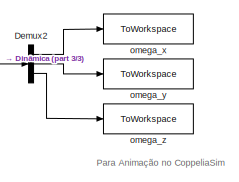
[diagram: root canvas - part 1/3, top right region]
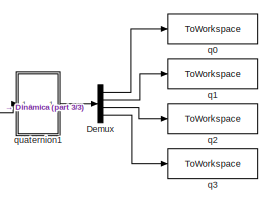
[diagram: root canvas - part 2/3, top right region]
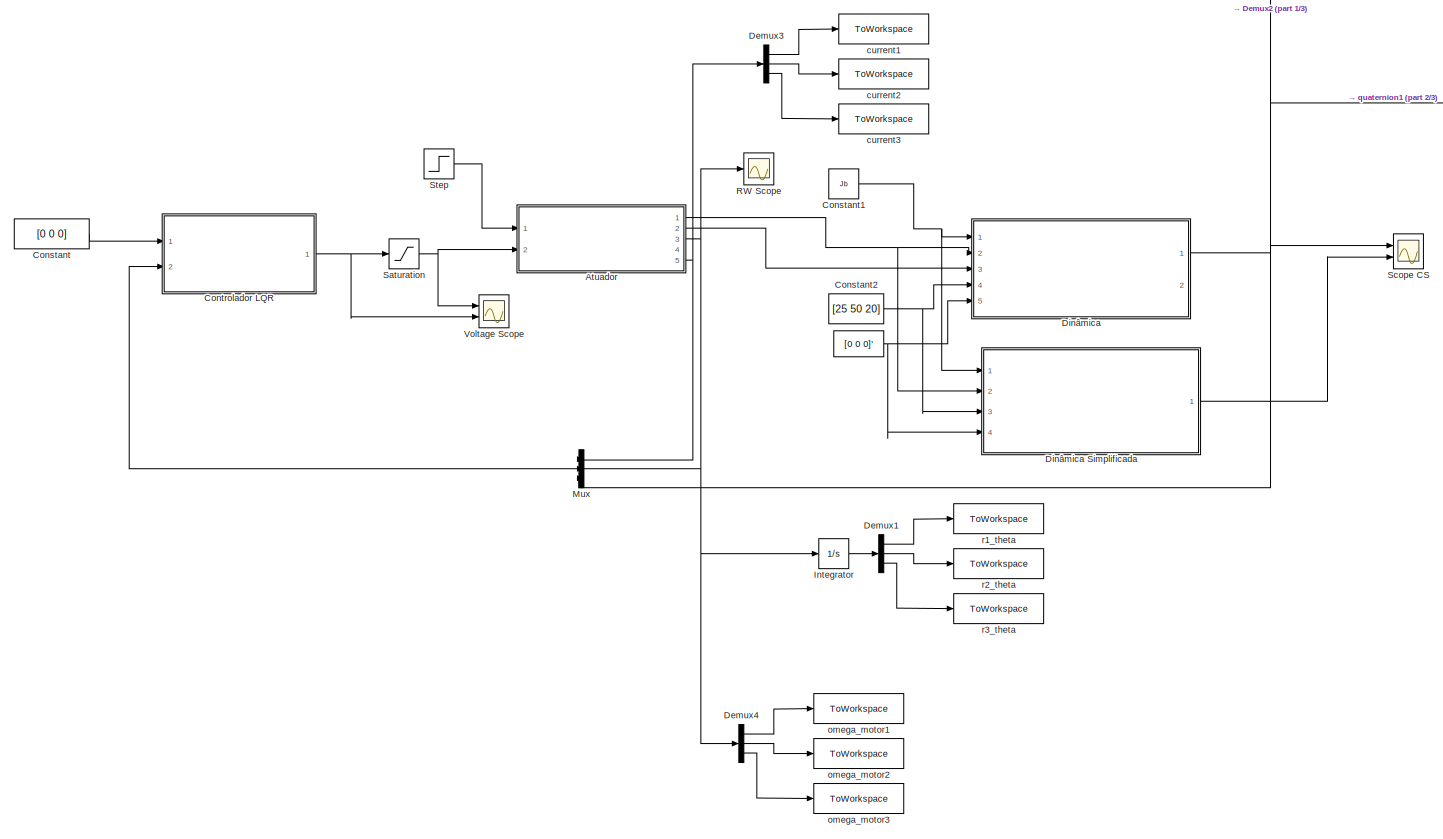
[diagram: root canvas - part 3/3, most of the canvas]
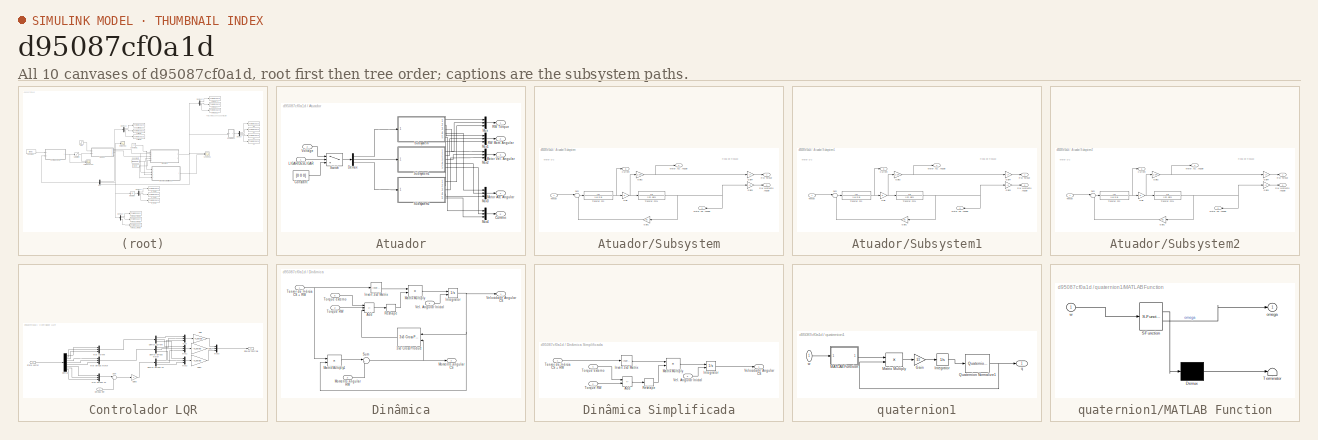
[diagram: thumbnail index - all 10 canvases of the model, root first then tree order]
MODEL slx_d95087cf0a1d
KIND model
CONFIG AbsTol = auto
CONFIG EnableMultiTasking = off
CONFIG FixedStep = auto
CONFIG MaxStep = 0.4
CONFIG MinStep = auto
CONFIG RelTol = 1e-3
CONFIG SampleTimeConstraint = Unconstrained
CONFIG SolverName = ode45
CONFIG StartTime = 0.0
CONFIG StopTime = 100
BLOCK [Constant]  
  Value = [0 0 0]'
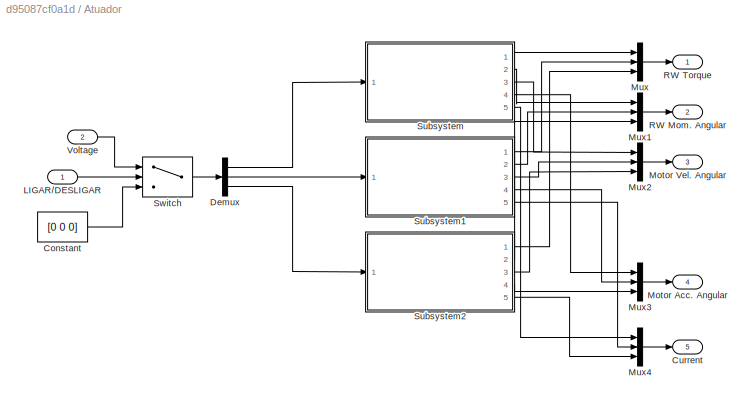
BLOCK [SubSystem] Atuador
  Ports = [2, 5]
  RequestExecContextInheritance = off
BLOCK [Constant] Atuador/Constant
  Value = [0 0 0]
BLOCK [Outport] Atuador/Current
  Port = 5
BLOCK [Demux] Atuador/Demux
  Outputs = 3
  Ports = [1, 3]
BLOCK [Inport] Atuador/LIGAR//DESLIGAR
BLOCK [Outport] Atuador/Motor Acc. Angular
  Port = 4
BLOCK [Outport] Atuador/Motor Vel. Angular
  Port = 3
BLOCK [Mux] Atuador/Mux
  DisplayOption = bar
  Inputs = 3
  Ports = [3, 1]
BLOCK [Mux] Atuador/Mux1
  DisplayOption = bar
  Inputs = 3
  Ports = [3, 1]
BLOCK [Mux] Atuador/Mux2
  DisplayOption = bar
  Inputs = 3
  Ports = [3, 1]
BLOCK [Mux] Atuador/Mux3
  DisplayOption = bar
  Inputs = 3
  Ports = [3, 1]
BLOCK [Mux] Atuador/Mux4
  DisplayOption = bar
  Inputs = 3
  Ports = [3, 1]
BLOCK [Outport] Atuador/RW Mom. Angular
  Port = 2
BLOCK [Outport] Atuador/RW Torque
BLOCK [SubSystem] Atuador/Subsystem
  Ports = [1, 5]
  RequestExecContextInheritance = off
BLOCK [Outport] Atuador/Subsystem/Current
  Port = 5
BLOCK [Gain] Atuador/Subsystem/Gain
  Gain = Ki
BLOCK [Gain] Atuador/Subsystem/Gain1
  Gain = Kb
BLOCK [Gain] Atuador/Subsystem/Gain2
  Gain = 1/Jm
BLOCK [Gain] Atuador/Subsystem/Gain3
  Gain = -Jr
BLOCK [Gain] Atuador/Subsystem/Gain4
  Gain = -Jr
BLOCK [Outport] Atuador/Subsystem/Motor Acc. Angular
  Port = 4
BLOCK [Outport] Atuador/Subsystem/Motor Vel. Angular
  Port = 3
BLOCK [Outport] Atuador/Subsystem/RW Momento Angular
  Port = 2
BLOCK [Outport] Atuador/Subsystem/RW Torque
BLOCK [Sum] Atuador/Subsystem/Sum
  Inputs = |+-
  Ports = [2, 1]
BLOCK [Inport] Atuador/Subsystem/Tensão
BLOCK [TransferFcn] Atuador/Subsystem/Transfer Fcn
  Denominator = [La Ra]
BLOCK [TransferFcn] Atuador/Subsystem/Transfer Fcn1
  Denominator = [Jm Bm]
BLOCK [SubSystem] Atuador/Subsystem1
  Ports = [1, 5]
  RequestExecContextInheritance = off
BLOCK [Outport] Atuador/Subsystem1/Current
  Port = 5
BLOCK [Gain] Atuador/Subsystem1/Gain
  Gain = Ki
BLOCK [Gain] Atuador/Subsystem1/Gain1
  Gain = Kb
BLOCK [Gain] Atuador/Subsystem1/Gain2
  Gain = 1/Jm
BLOCK [Gain] Atuador/Subsystem1/Gain3
  Gain = -Jr
BLOCK [Gain] Atuador/Subsystem1/Gain4
  Gain = -Jr
BLOCK [Outport] Atuador/Subsystem1/Motor Acc. Angular
  Port = 4
BLOCK [Outport] Atuador/Subsystem1/Motor Vel. Angular
  Port = 3
BLOCK [Outport] Atuador/Subsystem1/RW Momento Angular
  Port = 2
BLOCK [Outport] Atuador/Subsystem1/RW Torque
BLOCK [Sum] Atuador/Subsystem1/Sum
  Inputs = |+-
  Ports = [2, 1]
BLOCK [Inport] Atuador/Subsystem1/Tensão
BLOCK [TransferFcn] Atuador/Subsystem1/Transfer Fcn
  Denominator = [La Ra]
BLOCK [TransferFcn] Atuador/Subsystem1/Transfer Fcn1
  Denominator = [Jm Bm]
BLOCK [SubSystem] Atuador/Subsystem2
  Ports = [1, 5]
  RequestExecContextInheritance = off
BLOCK [Outport] Atuador/Subsystem2/Current
  Port = 5
BLOCK [Gain] Atuador/Subsystem2/Gain
  Gain = Ki
BLOCK [Gain] Atuador/Subsystem2/Gain1
  Gain = Kb
BLOCK [Gain] Atuador/Subsystem2/Gain2
  Gain = 1/Jm
BLOCK [Gain] Atuador/Subsystem2/Gain3
  Gain = -Jr
BLOCK [Gain] Atuador/Subsystem2/Gain4
  Gain = -Jr
BLOCK [Outport] Atuador/Subsystem2/Motor Acc. Angular
  Port = 4
BLOCK [Outport] Atuador/Subsystem2/Motor Vel. Angular
  Port = 3
BLOCK [Outport] Atuador/Subsystem2/RW Momento Angular
  Port = 2
BLOCK [Outport] Atuador/Subsystem2/RW Torque
BLOCK [Sum] Atuador/Subsystem2/Sum
  Inputs = |+-
  Ports = [2, 1]
BLOCK [Inport] Atuador/Subsystem2/Tensão
BLOCK [TransferFcn] Atuador/Subsystem2/Transfer Fcn
  Denominator = [La Ra]
BLOCK [TransferFcn] Atuador/Subsystem2/Transfer Fcn1
  Denominator = [Jm Bm]
BLOCK [Switch] Atuador/Switch
  Criteria = u2 > Threshold
  InputSameDT = off
  SaturateOnIntegerOverflow = off
BLOCK [Inport] Atuador/Voltage
  Port = 2
BLOCK [Constant] Constant
  Value = [0 0 0]
BLOCK [Constant] Constant1
  Value = Jb
BLOCK [Constant] Constant2
  Value = [25 50 20]
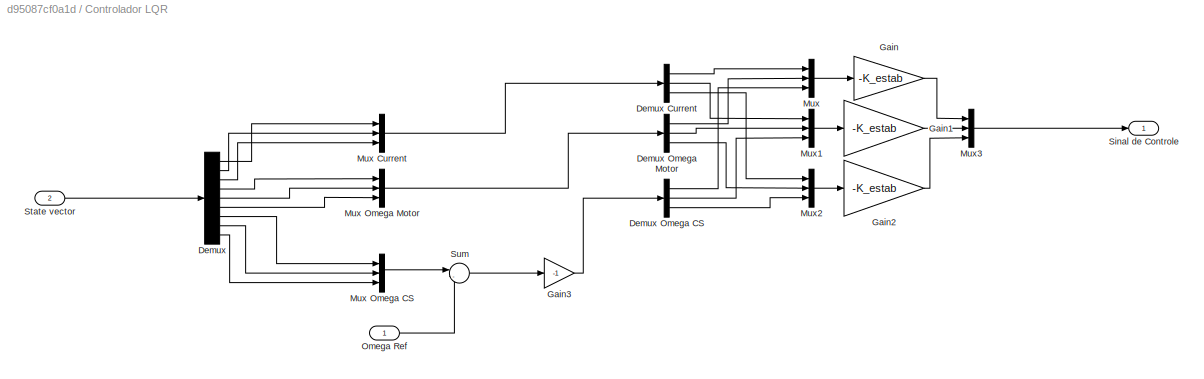
BLOCK [SubSystem] Controlador LQR
  Ports = [2, 1]
  RequestExecContextInheritance = off
BLOCK [Demux] Controlador LQR/Demux
  Outputs = 9
  Ports = [1, 9]
BLOCK [Demux] Controlador LQR/Demux Current
  Outputs = 3
  Ports = [1, 3]
BLOCK [Demux] Controlador LQR/Demux Omega CS
  Outputs = 3
  Ports = [1, 3]
BLOCK [Demux] Controlador LQR/Demux Omega Motor
  Outputs = 3
  Ports = [1, 3]
BLOCK [Gain] Controlador LQR/Gain
  Gain = -K_estab
  Multiplication = Matrix(K*u)
BLOCK [Gain] Controlador LQR/Gain1
  Gain = -K_estab
  Multiplication = Matrix(K*u)
BLOCK [Gain] Controlador LQR/Gain2
  Gain = -K_estab
  Multiplication = Matrix(K*u)
BLOCK [Gain] Controlador LQR/Gain3
  Gain = -1
BLOCK [Mux] Controlador LQR/Mux
  DisplayOption = bar
  Inputs = 3
  Ports = [3, 1]
BLOCK [Mux] Controlador LQR/Mux Current
  DisplayOption = bar
  Inputs = 3
  Ports = [3, 1]
BLOCK [Mux] Controlador LQR/Mux Omega CS
  DisplayOption = bar
  Inputs = 3
  Ports = [3, 1]
BLOCK [Mux] Controlador LQR/Mux Omega Motor
  DisplayOption = bar
  Inputs = 3
  Ports = [3, 1]
BLOCK [Mux] Controlador LQR/Mux1
  DisplayOption = bar
  Inputs = 3
  Ports = [3, 1]
BLOCK [Mux] Controlador LQR/Mux2
  DisplayOption = bar
  Inputs = 3
  Ports = [3, 1]
BLOCK [Mux] Controlador LQR/Mux3
  DisplayOption = bar
  Inputs = 3
  Ports = [3, 1]
BLOCK [Inport] Controlador LQR/Omega Ref
BLOCK [Outport] Controlador LQR/Sinal de Controle
BLOCK [Inport] Controlador LQR/State vector
  Port = 2
BLOCK [Sum] Controlador LQR/Sum
  Inputs = |-+
  Ports = [2, 1]
BLOCK [Demux] Demux
  Ports = [1, 4]
BLOCK [Demux] Demux1
  Outputs = 3
  Ports = [1, 3]
BLOCK [Demux] Demux2
  Outputs = 3
  Ports = [1, 3]
BLOCK [Demux] Demux3
  Outputs = 3
  Ports = [1, 3]
BLOCK [Demux] Demux4
  Outputs = 3
  Ports = [1, 3]
BLOCK [SubSystem] Dinâmica
  Ports = [5, 2]
  RequestExecContextInheritance = off
BLOCK [SubSystem] Dinâmica Simplificada
  Ports = [4, 1]
  RequestExecContextInheritance = off
BLOCK [Sum] Dinâmica Simplificada/Add
  IconShape = rectangular
  Inputs = +-
  Ports = [2, 1]
BLOCK [Integrator] Dinâmica Simplificada/Integrator
  InitialConditionSource = external
  Ports = [2, 1]
BLOCK [Reference] Dinâmica Simplificada/Invert 3x3 Matrix  REF=aerolibutil/Invert 
3x3 Matrix
  Ports = [1, 1]
  SourceBlock = aerolibutil/Invert \n3x3 Matrix
  SourceProductBaseCode = AE
  SourceType = Invert 3x3 Matrix
BLOCK [Product] Dinâmica Simplificada/Matrix Multiply
  Multiplication = Matrix(*)
  Ports = [2, 1]
BLOCK [Reshape] Dinâmica Simplificada/Reshape
  OutputDimensionality = Column vector (2-D)
  Ports = [1, 1]
BLOCK [Inport] Dinâmica Simplificada/Tensor de Inércia CS + RW
BLOCK [Inport] Dinâmica Simplificada/Torque RW
  Port = 2
BLOCK [Inport] Dinâmica Simplificada/Torque externo
  Port = 4
BLOCK [Inport] Dinâmica Simplificada/Vel. Angular Inicial
  Port = 3
BLOCK [Outport] Dinâmica Simplificada/Velocidade Angular CS
BLOCK [Reference] Dinâmica/3x3 Cross Product  REF=sharedutil/3x3 Cross Product
  NameLocation = top
  Ports = [2, 1]
  SourceBlock = sharedutil/3x3 Cross Product
  SourceProductBaseCode = AE,PW,DR,MT,UV,VE
  SourceType = CrossProduct
BLOCK [Sum] Dinâmica/Add
  IconShape = rectangular
  Inputs = +--
  Ports = [3, 1]
BLOCK [Integrator] Dinâmica/Integrator
  InitialConditionSource = external
  Ports = [2, 1]
BLOCK [Reference] Dinâmica/Invert 3x3 Matrix  REF=aerolibutil/Invert 
3x3 Matrix
  Ports = [1, 1]
  SourceBlock = aerolibutil/Invert \n3x3 Matrix
  SourceProductBaseCode = AE
  SourceType = Invert 3x3 Matrix
BLOCK [Product] Dinâmica/Matrix Multiply
  Multiplication = Matrix(*)
  Ports = [2, 1]
BLOCK [Product] Dinâmica/Matrix Multiply1
  Multiplication = Matrix(*)
  Ports = [2, 1]
BLOCK [Outport] Dinâmica/Momento angular CS
  Port = 2
BLOCK [Inport] Dinâmica/Momento angular RW
  Port = 3
BLOCK [Reshape] Dinâmica/Reshape
  OutputDimensionality = Column vector (2-D)
  Ports = [1, 1]
BLOCK [Sum] Dinâmica/Sum
  Inputs = |++
  Ports = [2, 1]
BLOCK [Inport] Dinâmica/Tensor de Inércia CS + RW
BLOCK [Inport] Dinâmica/Torque RW
  Port = 2
BLOCK [Inport] Dinâmica/Torque externo
  Port = 5
BLOCK [Inport] Dinâmica/Vel. Angular Inicial
  Port = 4
BLOCK [Outport] Dinâmica/Velocidade Angular CS
BLOCK [Integrator] Integrator
  Ports = [1, 1]
BLOCK [Mux] Mux
  DisplayOption = bar
  Inputs = 3
  Ports = [3, 1]
BLOCK [Scope] RW Scope
  Floating = off
  NumInputPorts = 1
  Ports = [1]
  ScopeSpecificationString = Simulink.scopes.TimeScopeBlockCfg('CurrentConfiguration', extmgr.ConfigurationSet(extmgr.Configuration('Core','General UI',true),extmgr.Configuration('Core','Source UI',true),extmgr.Configuration('Sources','WiredSimulink',true,'DataLoggingVariableName','ScopeData2'),extmgr.Configuration('Visuals','Time Domain',true,'SerializedDisplays',{struct('MinYLimReal','-28.44847','MaxYLimReal','3.17429','YLa...<+1475ch>
BLOCK [Saturate] Saturation
  LowerLimit = -12
  UpperLimit = 12
BLOCK [Scope] Scope CS
  Floating = off
  NumInputPorts = 2
  Ports = [2]
  ScopeSpecificationString = Simulink.scopes.TimeScopeBlockCfg('CurrentConfiguration', extmgr.ConfigurationSet(extmgr.Configuration('Core','General UI',true),extmgr.Configuration('Core','Source UI',true),extmgr.Configuration('Sources','WiredSimulink',true),extmgr.Configuration('Visuals','Time Domain',true,'SerializedDisplays',{struct('MinYLimReal','-6.25048','MaxYLimReal','56.25005','YLabelReal','','MinYLimMag','0.00000','Max...<+2551ch>
BLOCK [Step] Step
  Before = 1
  SampleTime = 0
  Time = 100
BLOCK [Scope] Voltage Scope
  Floating = off
  NumInputPorts = 2
  Ports = [2]
  ScopeSpecificationString = Simulink.scopes.TimeScopeBlockCfg('CurrentConfiguration', extmgr.ConfigurationSet(extmgr.Configuration('Core','General UI',true),extmgr.Configuration('Core','Source UI',true),extmgr.Configuration('Sources','WiredSimulink',true,'DataLoggingVariableName','ScopeData1'),extmgr.Configuration('Visuals','Time Domain',true,'SerializedDisplays',{struct('MinYLimReal','-66.41113','MaxYLimReal','7.3987','YLab...<+2346ch>
BLOCK [ToWorkspace] current1
  FixptAsFi = on
  MaxDataPoints = inf
  Ports = [1]
  SampleTime = -1
  VariableName = simout10
BLOCK [ToWorkspace] current2
  FixptAsFi = on
  MaxDataPoints = inf
  Ports = [1]
  SampleTime = -1
  VariableName = simout11
BLOCK [ToWorkspace] current3
  FixptAsFi = on
  MaxDataPoints = inf
  Ports = [1]
  SampleTime = -1
  VariableName = simout12
BLOCK [ToWorkspace] omega_motor1
  FixptAsFi = on
  MaxDataPoints = inf
  Ports = [1]
  SampleTime = -1
  VariableName = simout13
BLOCK [ToWorkspace] omega_motor2
  FixptAsFi = on
  MaxDataPoints = inf
  Ports = [1]
  SampleTime = -1
  VariableName = simout14
BLOCK [ToWorkspace] omega_motor3
  FixptAsFi = on
  MaxDataPoints = inf
  Ports = [1]
  SampleTime = -1
  VariableName = simout15
BLOCK [ToWorkspace] omega_x
  FixptAsFi = on
  MaxDataPoints = inf
  Ports = [1]
  SampleTime = -1
  VariableName = simout7
BLOCK [ToWorkspace] omega_y
  FixptAsFi = on
  MaxDataPoints = inf
  Ports = [1]
  SampleTime = -1
  VariableName = simout8
BLOCK [ToWorkspace] omega_z
  FixptAsFi = on
  MaxDataPoints = inf
  Ports = [1]
  SampleTime = -1
  VariableName = simout9
BLOCK [ToWorkspace] q0
  FixptAsFi = on
  MaxDataPoints = inf
  Ports = [1]
  SampleTime = -1
  VariableName = simout
BLOCK [ToWorkspace] q1
  FixptAsFi = on
  MaxDataPoints = inf
  Ports = [1]
  SampleTime = -1
  VariableName = simout1
BLOCK [ToWorkspace] q2
  FixptAsFi = on
  MaxDataPoints = inf
  Ports = [1]
  SampleTime = -1
  VariableName = simout2
BLOCK [ToWorkspace] q3
  FixptAsFi = on
  MaxDataPoints = inf
  Ports = [1]
  SampleTime = -1
  VariableName = simout3
BLOCK [SubSystem] quaternion1
  NameLocation = top
  Ports = [1, 1]
  RequestExecContextInheritance = off
BLOCK [Gain] quaternion1/Gain
  Gain = 1/2
BLOCK [Integrator] quaternion1/Integrator
  InitialCondition = [1 0 0 0]
  Ports = [1, 1]
BLOCK [SubSystem] quaternion1/MATLAB Function
  ErrorFcn = Stateflow.Translate.translate
  PermitHierarchicalResolution = ExplicitOnly
  Ports = [1, 1]
  RequestExecContextInheritance = off
  SFBlockType = MATLAB Function
  TreatAsAtomicUnit = on
BLOCK [Demux] quaternion1/MATLAB Function/ Demux 
  Outputs = 1
  Ports = [1, 1]
BLOCK [S-Function] quaternion1/MATLAB Function/ SFunction 
  EnableBusSupport = on
  FunctionName = sf_sfun
  PortCounts = [1 2]
  Ports = [1, 2]
  SFcnIsStateOwnerBlock = off
  SFunctionDeploymentMode = off
  Tag = Stateflow S-Function 1
BLOCK [Terminator] quaternion1/MATLAB Function/ Terminator 
BLOCK [Outport] quaternion1/MATLAB Function/omega
BLOCK [Inport] quaternion1/MATLAB Function/w
BLOCK [Product] quaternion1/Matrix Multiply
  Multiplication = Matrix(*)
  Ports = [2, 1]
BLOCK [Reference] quaternion1/Quaternion Normalize1  REF=sharedutil/Quaternion
Normalize
  NameLocation = top
  Ports = [1, 1]
  SourceBlock = sharedutil/Quaternion\nNormalize
  SourceProductBaseCode = AE,PW,DR,MT,UV,VE
  SourceType = Quaternion Normalize
BLOCK [Outport] quaternion1/q
BLOCK [Inport] quaternion1/w
  NameLocation = top
BLOCK [ToWorkspace] r1_theta
  FixptAsFi = on
  MaxDataPoints = inf
  Ports = [1]
  SampleTime = -1
  VariableName = simout4
BLOCK [ToWorkspace] r2_theta
  FixptAsFi = on
  MaxDataPoints = inf
  Ports = [1]
  SampleTime = -1
  VariableName = simout5
BLOCK [ToWorkspace] r3_theta
  FixptAsFi = on
  MaxDataPoints = inf
  Ports = [1]
  SampleTime = -1
  VariableName = simout6
ANNOTATION (root): Para Animação no CoppeliaSim
ANNOTATION Atuador/Subsystem: Motor DC
ANNOTATION Atuador/Subsystem: Roda de Reação
ANNOTATION Atuador/Subsystem1: Motor DC
ANNOTATION Atuador/Subsystem1: Roda de Reação
ANNOTATION Atuador/Subsystem2: Motor DC
ANNOTATION Atuador/Subsystem2: Roda de Reação
NET  :1 -> Dinâmica Simplificada:4, Dinâmica:5
LINE Atuador/Constant:1 -> Atuador/Switch:3
LINE Atuador/Demux:1 -> Atuador/Subsystem:1
LINE Atuador/Demux:2 -> Atuador/Subsystem1:1
LINE Atuador/Demux:3 -> Atuador/Subsystem2:1
LINE Atuador/LIGAR//DESLIGAR:1 -> Atuador/Switch:2
LINE Atuador/Mux1:1 -> Atuador/RW Mom. Angular:1
LINE Atuador/Mux2:1 -> Atuador/Motor Vel. Angular:1
LINE Atuador/Mux3:1 -> Atuador/Motor Acc. Angular:1
LINE Atuador/Mux4:1 -> Atuador/Current:1
LINE Atuador/Mux:1 -> Atuador/RW Torque:1
LINE Atuador/Subsystem/Gain1:1 -> Atuador/Subsystem/Sum:2
NET Atuador/Subsystem/Gain2:1 -> Atuador/Subsystem/Gain4:1, Atuador/Subsystem/Motor Acc. Angular:1
LINE Atuador/Subsystem/Gain3:1 -> Atuador/Subsystem/RW Momento Angular:1
LINE Atuador/Subsystem/Gain4:1 -> Atuador/Subsystem/RW Torque:1
NET Atuador/Subsystem/Gain:1 -> Atuador/Subsystem/Gain2:1, Atuador/Subsystem/Transfer Fcn1:1
LINE Atuador/Subsystem/Sum:1 -> Atuador/Subsystem/Transfer Fcn:1
LINE Atuador/Subsystem/Tensão:1 -> Atuador/Subsystem/Sum:1
NET Atuador/Subsystem/Transfer Fcn1:1 -> Atuador/Subsystem/Gain1:1, Atuador/Subsystem/Gain3:1, Atuador/Subsystem/Motor Vel. Angular:1
NET Atuador/Subsystem/Transfer Fcn:1 -> Atuador/Subsystem/Current:1, Atuador/Subsystem/Gain:1
LINE Atuador/Subsystem1/Gain1:1 -> Atuador/Subsystem1/Sum:2
NET Atuador/Subsystem1/Gain2:1 -> Atuador/Subsystem1/Gain4:1, Atuador/Subsystem1/Motor Acc. Angular:1
LINE Atuador/Subsystem1/Gain3:1 -> Atuador/Subsystem1/RW Momento Angular:1
LINE Atuador/Subsystem1/Gain4:1 -> Atuador/Subsystem1/RW Torque:1
NET Atuador/Subsystem1/Gain:1 -> Atuador/Subsystem1/Gain2:1, Atuador/Subsystem1/Transfer Fcn1:1
LINE Atuador/Subsystem1/Sum:1 -> Atuador/Subsystem1/Transfer Fcn:1
LINE Atuador/Subsystem1/Tensão:1 -> Atuador/Subsystem1/Sum:1
NET Atuador/Subsystem1/Transfer Fcn1:1 -> Atuador/Subsystem1/Gain1:1, Atuador/Subsystem1/Gain3:1, Atuador/Subsystem1/Motor Vel. Angular:1
NET Atuador/Subsystem1/Transfer Fcn:1 -> Atuador/Subsystem1/Current:1, Atuador/Subsystem1/Gain:1
LINE Atuador/Subsystem1:1 -> Atuador/Mux:2
LINE Atuador/Subsystem1:2 -> Atuador/Mux1:2
LINE Atuador/Subsystem1:3 -> Atuador/Mux2:2
LINE Atuador/Subsystem1:4 -> Atuador/Mux3:2
LINE Atuador/Subsystem1:5 -> Atuador/Mux4:2
LINE Atuador/Subsystem2/Gain1:1 -> Atuador/Subsystem2/Sum:2
NET Atuador/Subsystem2/Gain2:1 -> Atuador/Subsystem2/Gain4:1, Atuador/Subsystem2/Motor Acc. Angular:1
LINE Atuador/Subsystem2/Gain3:1 -> Atuador/Subsystem2/RW Momento Angular:1
LINE Atuador/Subsystem2/Gain4:1 -> Atuador/Subsystem2/RW Torque:1
NET Atuador/Subsystem2/Gain:1 -> Atuador/Subsystem2/Gain2:1, Atuador/Subsystem2/Transfer Fcn1:1
LINE Atuador/Subsystem2/Sum:1 -> Atuador/Subsystem2/Transfer Fcn:1
LINE Atuador/Subsystem2/Tensão:1 -> Atuador/Subsystem2/Sum:1
NET Atuador/Subsystem2/Transfer Fcn1:1 -> Atuador/Subsystem2/Gain1:1, Atuador/Subsystem2/Gain3:1, Atuador/Subsystem2/Motor Vel. Angular:1
NET Atuador/Subsystem2/Transfer Fcn:1 -> Atuador/Subsystem2/Current:1, Atuador/Subsystem2/Gain:1
LINE Atuador/Subsystem2:1 -> Atuador/Mux:3
LINE Atuador/Subsystem2:2 -> Atuador/Mux1:3
LINE Atuador/Subsystem2:3 -> Atuador/Mux2:3
LINE Atuador/Subsystem2:4 -> Atuador/Mux3:3
LINE Atuador/Subsystem2:5 -> Atuador/Mux4:3
LINE Atuador/Subsystem:1 -> Atuador/Mux:1
LINE Atuador/Subsystem:2 -> Atuador/Mux1:1
LINE Atuador/Subsystem:3 -> Atuador/Mux2:1
LINE Atuador/Subsystem:4 -> Atuador/Mux3:1
LINE Atuador/Subsystem:5 -> Atuador/Mux4:1
LINE Atuador/Switch:1 -> Atuador/Demux:1
LINE Atuador/Voltage:1 -> Atuador/Switch:1
NET Atuador:1 -> Dinâmica Simplificada:2, Dinâmica:2
LINE Atuador:2 -> Dinâmica:3
NET Atuador:3 -> Demux4:1, Integrator:1, Mux:2, RW Scope:1
NET Atuador:5 -> Demux3:1, Mux:1
NET Constant1:1 -> Dinâmica Simplificada:1, Dinâmica:1
NET Constant2:1 -> Dinâmica Simplificada:3, Dinâmica:4
LINE Constant:1 -> Controlador LQR:1
LINE Controlador LQR/Demux Current:1 -> Controlador LQR/Mux:1
LINE Controlador LQR/Demux Current:2 -> Controlador LQR/Mux1:1
LINE Controlador LQR/Demux Current:3 -> Controlador LQR/Mux2:1
LINE Controlador LQR/Demux Omega CS:1 -> Controlador LQR/Mux:3
LINE Controlador LQR/Demux Omega CS:2 -> Controlador LQR/Mux1:3
LINE Controlador LQR/Demux Omega CS:3 -> Controlador LQR/Mux2:3
LINE Controlador LQR/Demux Omega Motor:1 -> Controlador LQR/Mux:2
LINE Controlador LQR/Demux Omega Motor:2 -> Controlador LQR/Mux1:2
LINE Controlador LQR/Demux Omega Motor:3 -> Controlador LQR/Mux2:2
LINE Controlador LQR/Demux:1 -> Controlador LQR/Mux Current:1
LINE Controlador LQR/Demux:2 -> Controlador LQR/Mux Current:2
LINE Controlador LQR/Demux:3 -> Controlador LQR/Mux Current:3
LINE Controlador LQR/Demux:4 -> Controlador LQR/Mux Omega Motor:1
LINE Controlador LQR/Demux:5 -> Controlador LQR/Mux Omega Motor:2
LINE Controlador LQR/Demux:6 -> Controlador LQR/Mux Omega Motor:3
LINE Controlador LQR/Demux:7 -> Controlador LQR/Mux Omega CS:1
LINE Controlador LQR/Demux:8 -> Controlador LQR/Mux Omega CS:2
LINE Controlador LQR/Demux:9 -> Controlador LQR/Mux Omega CS:3
LINE Controlador LQR/Gain1:1 -> Controlador LQR/Mux3:2
LINE Controlador LQR/Gain2:1 -> Controlador LQR/Mux3:3
LINE Controlador LQR/Gain3:1 -> Controlador LQR/Demux Omega CS:1
LINE Controlador LQR/Gain:1 -> Controlador LQR/Mux3:1
LINE Controlador LQR/Mux Current:1 -> Controlador LQR/Demux Current:1
LINE Controlador LQR/Mux Omega CS:1 -> Controlador LQR/Sum:1
LINE Controlador LQR/Mux Omega Motor:1 -> Controlador LQR/Demux Omega Motor:1
LINE Controlador LQR/Mux1:1 -> Controlador LQR/Gain1:1
LINE Controlador LQR/Mux2:1 -> Controlador LQR/Gain2:1
LINE Controlador LQR/Mux3:1 -> Controlador LQR/Sinal de Controle:1
LINE Controlador LQR/Mux:1 -> Controlador LQR/Gain:1
LINE Controlador LQR/Omega Ref:1 -> Controlador LQR/Sum:2
LINE Controlador LQR/State vector:1 -> Controlador LQR/Demux:1
LINE Controlador LQR/Sum:1 -> Controlador LQR/Gain3:1
NET Controlador LQR:1 -> Saturation:1, Voltage Scope:2
LINE Demux1:1 -> r1_theta:1
LINE Demux1:2 -> r2_theta:1
LINE Demux1:3 -> r3_theta:1
LINE Demux2:1 -> omega_x:1
LINE Demux2:2 -> omega_y:1
LINE Demux2:3 -> omega_z:1
LINE Demux3:1 -> current1:1
LINE Demux3:2 -> current2:1
LINE Demux3:3 -> current3:1
LINE Demux4:1 -> omega_motor1:1
LINE Demux4:2 -> omega_motor2:1
LINE Demux4:3 -> omega_motor3:1
LINE Demux:1 -> q0:1
LINE Demux:2 -> q1:1
LINE Demux:3 -> q2:1
LINE Demux:4 -> q3:1
LINE Dinâmica Simplificada/Add:1 -> Dinâmica Simplificada/Reshape:1
LINE Dinâmica Simplificada/Integrator:1 -> Dinâmica Simplificada/Velocidade Angular CS:1
LINE Dinâmica Simplificada/Invert 3x3 Matrix:1 -> Dinâmica Simplificada/Matrix Multiply:1
LINE Dinâmica Simplificada/Matrix Multiply:1 -> Dinâmica Simplificada/Integrator:1
LINE Dinâmica Simplificada/Reshape:1 -> Dinâmica Simplificada/Matrix Multiply:2
LINE Dinâmica Simplificada/Tensor de Inércia CS + RW:1 -> Dinâmica Simplificada/Invert 3x3 Matrix:1
LINE Dinâmica Simplificada/Torque RW:1 -> Dinâmica Simplificada/Add:2
LINE Dinâmica Simplificada/Torque externo:1 -> Dinâmica Simplificada/Add:1
LINE Dinâmica Simplificada/Vel. Angular Inicial:1 -> Dinâmica Simplificada/Integrator:2
LINE Dinâmica Simplificada:1 -> Scope CS:2
LINE Dinâmica/3x3 Cross Product:1 -> Dinâmica/Add:3
LINE Dinâmica/Add:1 -> Dinâmica/Reshape:1
NET Dinâmica/Integrator:1 -> Dinâmica/3x3 Cross Product:1, Dinâmica/Matrix Multiply1:2, Dinâmica/Velocidade Angular CS:1
LINE Dinâmica/Invert 3x3 Matrix:1 -> Dinâmica/Matrix Multiply:1
LINE Dinâmica/Matrix Multiply1:1 -> Dinâmica/Sum:1
LINE Dinâmica/Matrix Multiply:1 -> Dinâmica/Integrator:1
LINE Dinâmica/Momento angular RW:1 -> Dinâmica/Sum:2
LINE Dinâmica/Reshape:1 -> Dinâmica/Matrix Multiply:2
NET Dinâmica/Sum:1 -> Dinâmica/3x3 Cross Product:2, Dinâmica/Momento angular CS:1
NET Dinâmica/Tensor de Inércia CS + RW:1 -> Dinâmica/Invert 3x3 Matrix:1, Dinâmica/Matrix Multiply1:1
LINE Dinâmica/Torque RW:1 -> Dinâmica/Add:2
LINE Dinâmica/Torque externo:1 -> Dinâmica/Add:1
LINE Dinâmica/Vel. Angular Inicial:1 -> Dinâmica/Integrator:2
NET Dinâmica:1 -> Demux2:1, Mux:3, Scope CS:1, quaternion1:1
LINE Integrator:1 -> Demux1:1
LINE Mux:1 -> Controlador LQR:2
NET Saturation:1 -> Atuador:2, Voltage Scope:1
LINE Step:1 -> Atuador:1
LINE quaternion1/Gain:1 -> quaternion1/Integrator:1
LINE quaternion1/Integrator:1 -> quaternion1/Quaternion Normalize1:1
LINE quaternion1/MATLAB Function:1 -> quaternion1/Matrix Multiply:1
LINE quaternion1/Matrix Multiply:1 -> quaternion1/Gain:1
NET quaternion1/Quaternion Normalize1:1 -> quaternion1/Matrix Multiply:2, quaternion1/q:1
LINE quaternion1/w:1 -> quaternion1/MATLAB Function:1
LINE quaternion1:1 -> Demux:1
note: NET lines group one-source signal fan-out (src -> all destinations, sorted); 1:1 wires keep LINE
CHART quaternion1/MATLAB Function states=1 transitions=1
  STATE_LABEL 'eML_blk_kernel()'
  STATE_LABEL 'SCRIPT:\nfunction omega = fcn(w)\n    wx = w(1);\n    wy = w(2);\n    wz = w(3);\n    res = [0 -wx -wy -wz;wx 0 wz -wy;wy -wz 0 wx;wz wy -wx 0];\nomega = res;\n'
CHART  states=0 transitions=0
